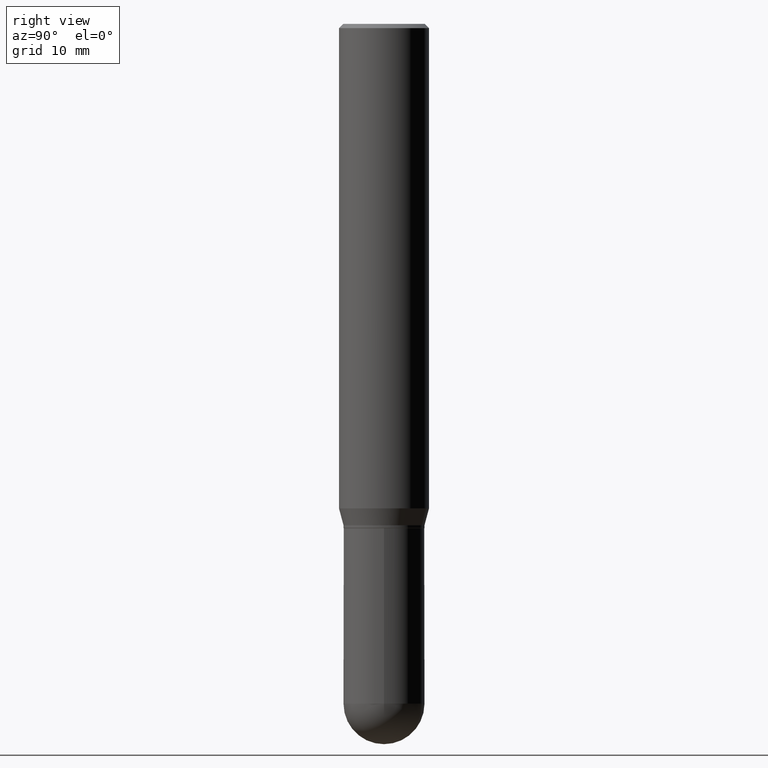
[diagram: clean part render]
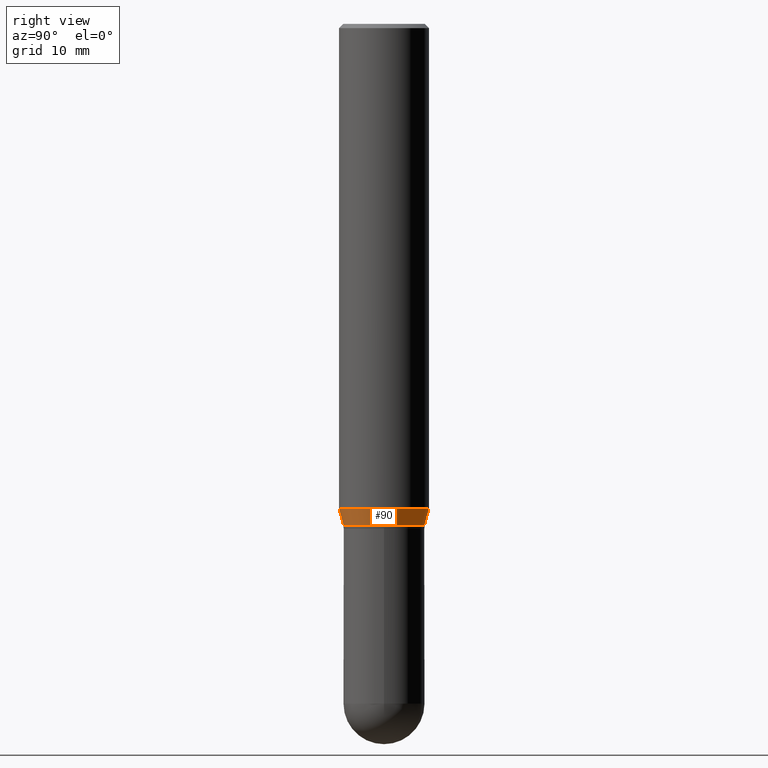
[diagram: same view with one face highlighted and labeled with its STEP entity id]
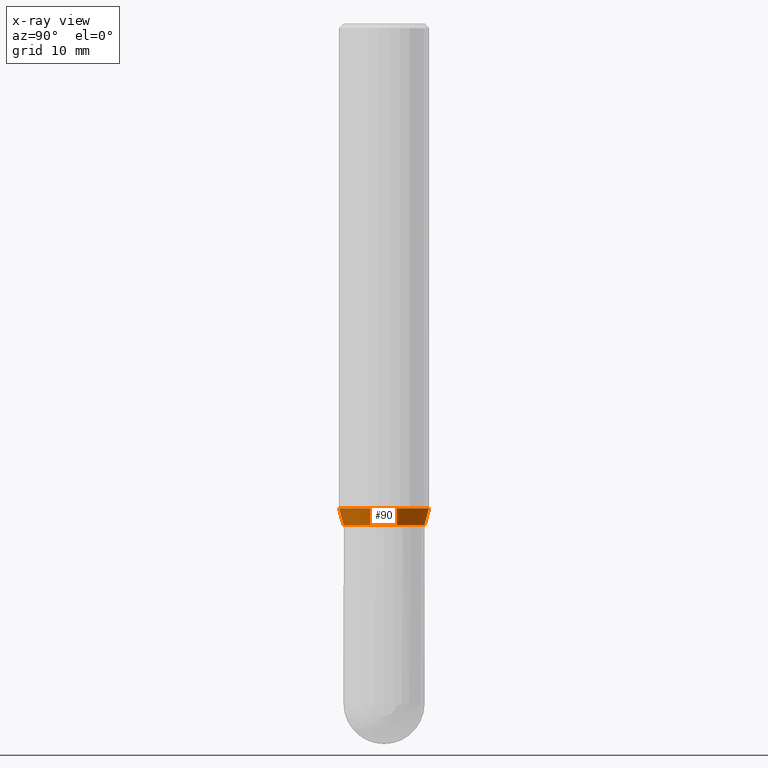
[diagram: x-ray of the same camera — body ghosted, the highlighted face saturated]
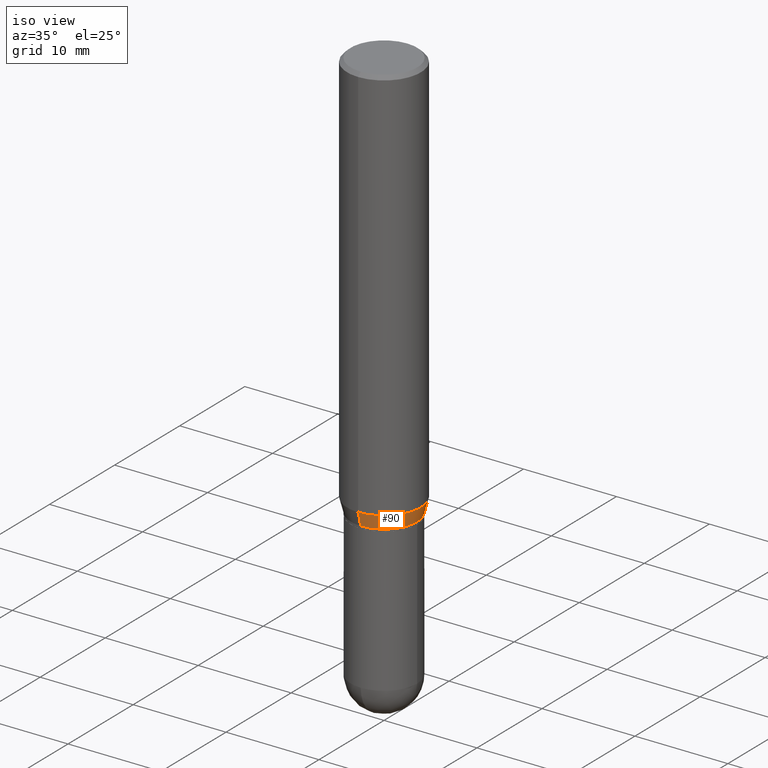
[diagram: same view with one face highlighted and labeled with its STEP entity id]
A machine part, right view. The second image highlights one B-rep face of the part: STEP entity #90.
The next image is the same camera in x-ray: the body ghosted, the highlighted face saturated — about 0% of this face is hidden behind the body in this view.
A second angle (iso view) of the same face is appended — the face is thin or edge-on in the first view.
In plain terms, the highlighted conical surface has half-angle 15 deg.
Its self-contained STEP definition (entity closure, byte-faithful):
#3 = DIRECTION ( 'NONE',  ( -2.445665582166115996E-29, 3.491199544438589874E-15, 1.000000000000000000 ) ) ;
#12 = CARTESIAN_POINT ( 'NONE',  ( 1.110223024625197561E-15, 0.1562499999999941436, -1.681593404861547514 ) ) ;
#19 = CARTESIAN_POINT ( 'NONE',  ( -9.818045524826459157E-16, -0.1406000000000059980, -1.739999999999999547 ) ) ;
#31 = VECTOR ( 'NONE', #104, 39.37007874015748143 ) ;
#53 = AXIS2_PLACEMENT_3D ( 'NONE', #294, #454, #450 ) ;
#59 = DIRECTION ( 'NONE',  ( -2.445665582166115996E-29, 3.491199544438589874E-15, 1.000000000000000000 ) ) ;
#79 = CIRCLE ( 'NONE', #326, 0.1562500000000000000 ) ;
#90 = ADVANCED_FACE ( 'NONE', ( #262 ), #109, .T. ) ;
#104 = DIRECTION ( 'NONE',  ( 1.839019923739597160E-15, 0.2588190451025245142, 0.9659258262890673130 ) ) ;
#109 = CONICAL_SURFACE ( 'NONE', #466, 0.1405999999999999195, 0.2617993877991497964 ) ;
#122 = DIRECTION ( 'NONE',  ( -6.982962677686265133E-15, -1.000000000000000000, 3.496765431890256920E-15 ) ) ;
#124 = ORIENTED_EDGE ( 'NONE', *, *, #443, .F. ) ;
#129 = CARTESIAN_POINT ( 'NONE',  ( 1.054623055551970126E-15, 0.1405999999999938410, -1.740000000000000657 ) ) ;
#160 = ORIENTED_EDGE ( 'NONE', *, *, #295, .T. ) ;
#178 = LINE ( 'NONE', #190, #31 ) ;
#190 = CARTESIAN_POINT ( 'NONE',  ( 9.990230864787428877E-16, 0.1405999999999938410, -1.740000000000000657 ) ) ;
#191 = EDGE_CURVE ( 'NONE', #354, #366, #314, .T. ) ;
#201 = ORIENTED_EDGE ( 'NONE', *, *, #191, .T. ) ;
#218 = LINE ( 'NONE', #19, #304 ) ;
#229 = VERTEX_POINT ( 'NONE', #12 ) ;
#262 = FACE_OUTER_BOUND ( 'NONE', #485, .T. ) ;
#263 = CARTESIAN_POINT ( 'NONE',  ( -9.818045524826459157E-16, -0.1406000000000059980, -1.739999999999999547 ) ) ;
#278 = ORIENTED_EDGE ( 'NONE', *, *, #328, .F. ) ;
#294 = CARTESIAN_POINT ( 'NONE',  ( 4.255458112969042024E-29, -6.074687207323146279E-15, -1.739999999999999991 ) ) ;
#295 = EDGE_CURVE ( 'NONE', #366, #229, #178, .T. ) ;
#297 = CARTESIAN_POINT ( 'NONE',  ( 4.112615113467415944E-29, -5.870778128983569149E-15, -1.681593404861546848 ) ) ;
#298 = DIRECTION ( 'NONE',  ( -6.982962677686266711E-15, -1.000000000000000000, 3.885985766236507752E-15 ) ) ;
#304 = VECTOR ( 'NONE', #491, 39.37007874015748143 ) ;
#314 = CIRCLE ( 'NONE', #53, 0.1405999999999999195 ) ;
#326 = AXIS2_PLACEMENT_3D ( 'NONE', #297, #3, #122 ) ;
#328 = EDGE_CURVE ( 'NONE', #354, #431, #218, .T. ) ;
#354 = VERTEX_POINT ( 'NONE', #263 ) ;
#366 = VERTEX_POINT ( 'NONE', #129 ) ;
#407 = CARTESIAN_POINT ( 'NONE',  ( -1.091087918388437956E-15, -0.1562500000000058842, -1.681593404861546404 ) ) ;
#411 = CARTESIAN_POINT ( 'NONE',  ( 4.255458112969042024E-29, -6.074687207323146279E-15, -1.739999999999999991 ) ) ;
#431 = VERTEX_POINT ( 'NONE', #407 ) ;
#443 = EDGE_CURVE ( 'NONE', #431, #229, #79, .T. ) ;
#450 = DIRECTION ( 'NONE',  ( -6.982962677686266711E-15, -1.000000000000000000, 3.885985766236507752E-15 ) ) ;
#454 = DIRECTION ( 'NONE',  ( -2.445665582166115996E-29, 3.491199544438589874E-15, 1.000000000000000000 ) ) ;
#466 = AXIS2_PLACEMENT_3D ( 'NONE', #411, #59, #298 ) ;
#485 = EDGE_LOOP ( 'NONE', ( #201, #160, #124, #278 ) ) ;
#491 = DIRECTION ( 'NONE',  ( -1.807323732225326984E-15, -0.2588190451025177419, 0.9659258262890690894 ) ) ;